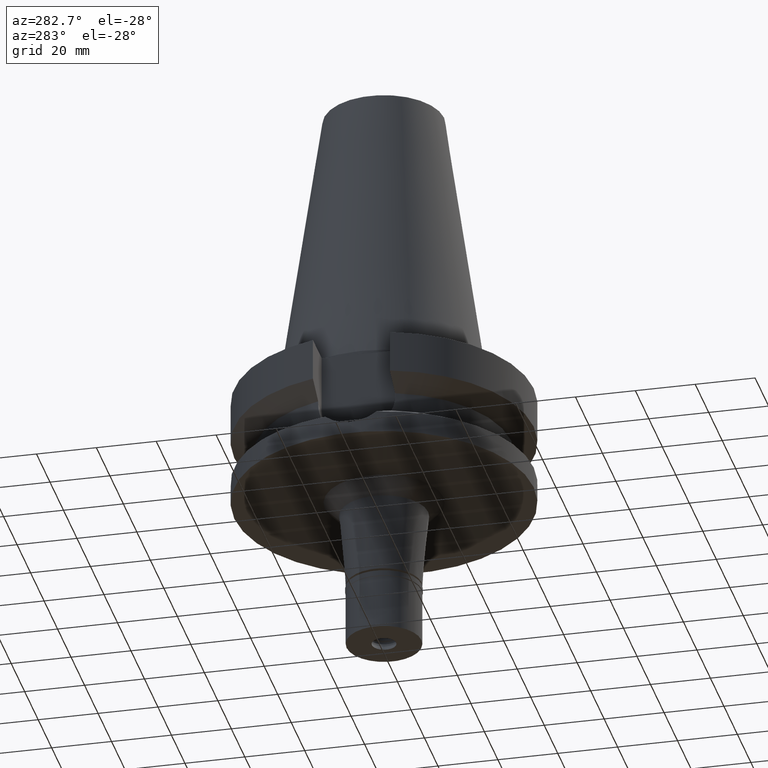
[diagram: clean part render]
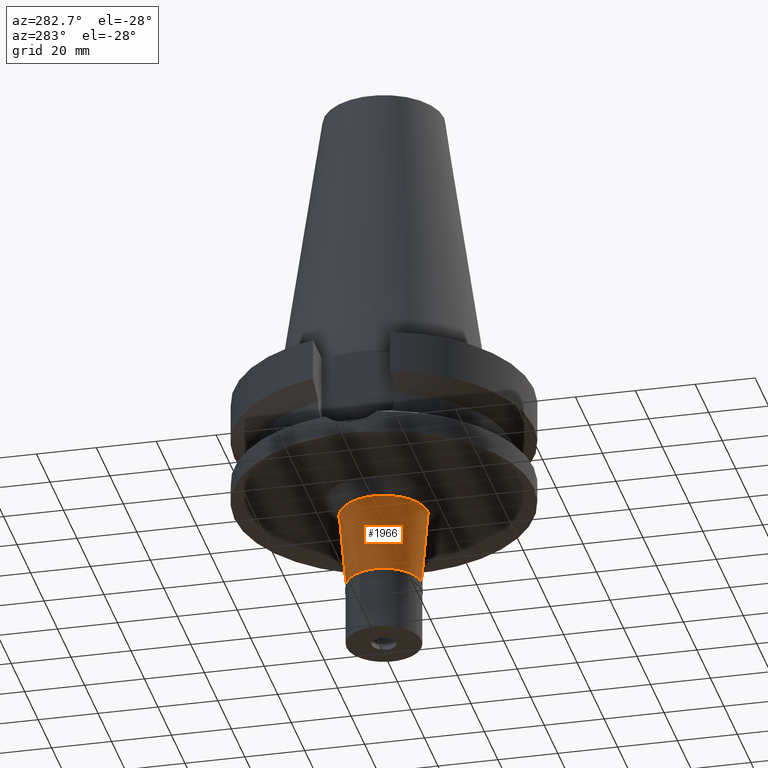
[diagram: same view with one face highlighted and labeled with its STEP entity id]
A machine part, auxiliary view. The second image highlights one B-rep face of the part: STEP entity #1966.
In plain terms, the highlighted conical surface has half-angle 5 deg.
Its self-contained STEP definition (entity closure, byte-faithful):
#7 = AXIS2_PLACEMENT_3D ( 'NONE', #1967, #2945, #1445 ) ;
#224 = DIRECTION ( 'NONE',  ( 0.0000000000000000000, 0.08715574274772348862, -0.9961946980917397720 ) ) ;
#259 = CARTESIAN_POINT ( 'NONE',  ( 0.0000000000000000000, -12.50000000000000000, -68.70000000000000284 ) ) ;
#276 = AXIS2_PLACEMENT_3D ( 'NONE', #3027, #2783, #2566 ) ;
#352 = CARTESIAN_POINT ( 'NONE',  ( 0.0000000000000000000, -14.74845865262000011, -43.00000000000000000 ) ) ;
#448 = DIRECTION ( 'NONE',  ( 0.0000000000000000000, -0.08715574274772348862, -0.9961946980917397720 ) ) ;
#564 = ORIENTED_EDGE ( 'NONE', *, *, #851, .F. ) ;
#679 = LINE ( 'NONE', #2429, #1002 ) ;
#737 = CARTESIAN_POINT ( 'NONE',  ( 0.0000000000000000000, -14.74845865262000011, -43.00000000000000000 ) ) ;
#805 = VERTEX_POINT ( 'NONE', #1421 ) ;
#851 = EDGE_CURVE ( 'NONE', #1529, #1746, #981, .T. ) ;
#981 = LINE ( 'NONE', #737, #2162 ) ;
#1002 = VECTOR ( 'NONE', #448, 1000.000000000000227 ) ;
#1053 = AXIS2_PLACEMENT_3D ( 'NONE', #2884, #3158, #2149 ) ;
#1072 = FACE_OUTER_BOUND ( 'NONE', #3046, .T. ) ;
#1274 = CARTESIAN_POINT ( 'NONE',  ( 0.0000000000000000000, 14.74845865262000011, -43.00000000000000000 ) ) ;
#1325 = ORIENTED_EDGE ( 'NONE', *, *, #2202, .T. ) ;
#1373 = EDGE_CURVE ( 'NONE', #1529, #1822, #2122, .T. ) ;
#1421 = CARTESIAN_POINT ( 'NONE',  ( 0.0000000000000000000, 12.50000000000000000, -68.70000000000000284 ) ) ;
#1445 = DIRECTION ( 'NONE',  ( 0.0000000000000000000, -1.000000000000000000, 0.0000000000000000000 ) ) ;
#1529 = VERTEX_POINT ( 'NONE', #352 ) ;
#1653 = CONICAL_SURFACE ( 'NONE', #276, 13.62422932630999917, 0.08726646259969973729 ) ;
#1746 = VERTEX_POINT ( 'NONE', #259 ) ;
#1822 = VERTEX_POINT ( 'NONE', #1274 ) ;
#1966 = ADVANCED_FACE ( 'NONE', ( #1072 ), #1653, .T. ) ;
#1967 = CARTESIAN_POINT ( 'NONE',  ( 0.0000000000000000000, 0.0000000000000000000, -43.00000000000000000 ) ) ;
#2122 = CIRCLE ( 'NONE', #7, 14.74845865262000011 ) ;
#2149 = DIRECTION ( 'NONE',  ( 0.0000000000000000000, 1.000000000000000000, 0.0000000000000000000 ) ) ;
#2162 = VECTOR ( 'NONE', #224, 1000.000000000000227 ) ;
#2202 = EDGE_CURVE ( 'NONE', #805, #1746, #2998, .T. ) ;
#2350 = ORIENTED_EDGE ( 'NONE', *, *, #1373, .T. ) ;
#2429 = CARTESIAN_POINT ( 'NONE',  ( 0.0000000000000000000, 14.74845865262000011, -43.00000000000000000 ) ) ;
#2566 = DIRECTION ( 'NONE',  ( 0.0000000000000000000, 1.000000000000000000, 0.0000000000000000000 ) ) ;
#2674 = EDGE_CURVE ( 'NONE', #1822, #805, #679, .T. ) ;
#2783 = DIRECTION ( 'NONE',  ( 0.0000000000000000000, 0.0000000000000000000, 1.000000000000000000 ) ) ;
#2884 = CARTESIAN_POINT ( 'NONE',  ( 0.0000000000000000000, 0.0000000000000000000, -68.70000000000000284 ) ) ;
#2945 = DIRECTION ( 'NONE',  ( 0.0000000000000000000, 0.0000000000000000000, -1.000000000000000000 ) ) ;
#2998 = CIRCLE ( 'NONE', #1053, 12.50000000000000000 ) ;
#3027 = CARTESIAN_POINT ( 'NONE',  ( 0.0000000000000000000, 0.0000000000000000000, -55.84999999999999432 ) ) ;
#3046 = EDGE_LOOP ( 'NONE', ( #1325, #564, #2350, #3053 ) ) ;
#3053 = ORIENTED_EDGE ( 'NONE', *, *, #2674, .T. ) ;
#3158 = DIRECTION ( 'NONE',  ( 0.0000000000000000000, 0.0000000000000000000, 1.000000000000000000 ) ) ;